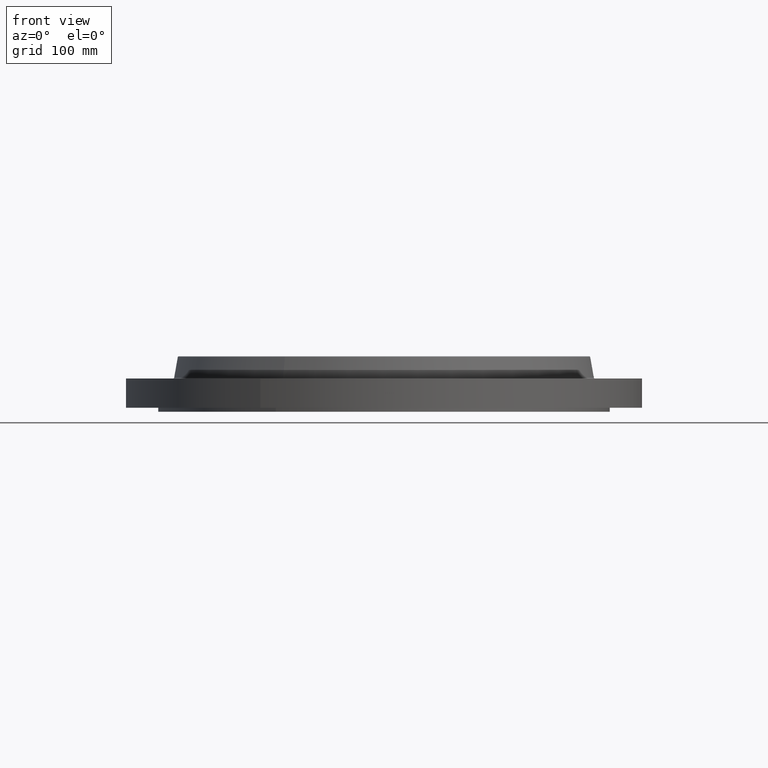
[diagram: clean part render]
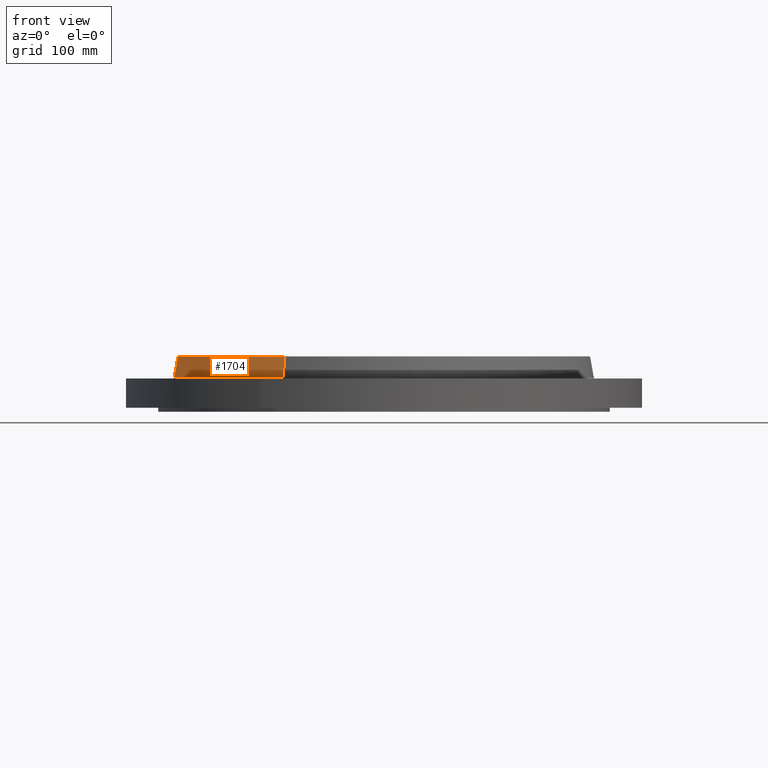
[diagram: same view with one face highlighted and labeled with its STEP entity id]
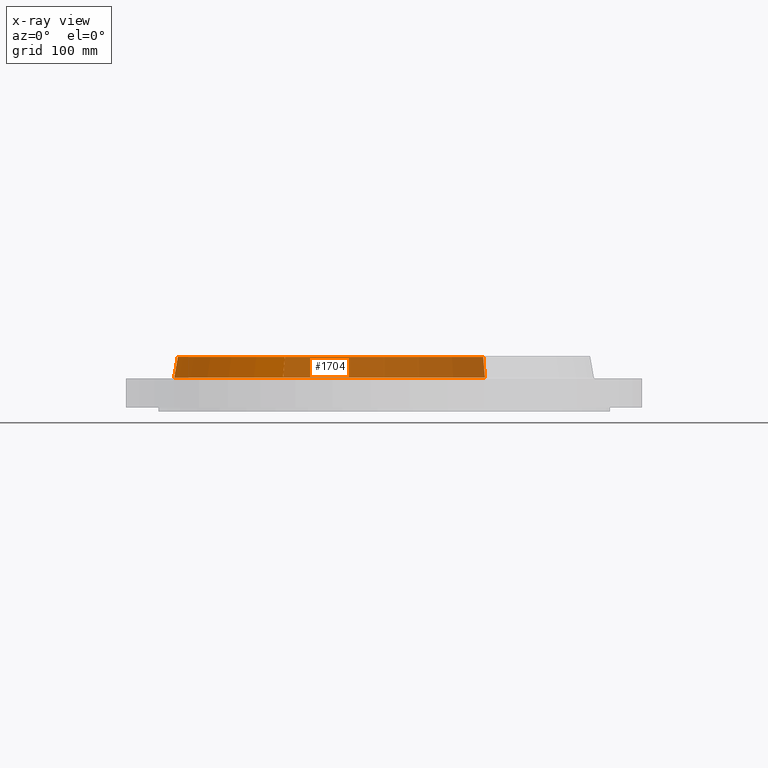
[diagram: x-ray of the same camera — body ghosted, the highlighted face saturated]
A machine part, front view. The second image highlights one B-rep face of the part: STEP entity #1704.
The next image is the same camera in x-ray: the body ghosted, the highlighted face saturated — about 65% of this face is hidden behind the body in this view.
In plain terms, the highlighted conical surface has half-angle 10 deg.
Its self-contained STEP definition (entity closure, byte-faithful):
#1609=AXIS2_PLACEMENT_3D('Circle Axis2P3D',#1607,#1608,$) ;
#1665=AXIS2_PLACEMENT_3D('Cone Axis2P3D',#1662,#1663,#1664) ;
#1695=AXIS2_PLACEMENT_3D('Circle Axis2P3D',#1693,#1694,$) ;
#1580=CARTESIAN_POINT('Vertex',(6.25710616251,11.4535560039,1.85958110935)) ;
#1587=CARTESIAN_POINT('Vertex',(-6.25710616251,-11.4535560039,1.85958110935)) ;
#1607=CARTESIAN_POINT('Axis2P3D Location',(0.,0.,1.85958110935)) ;
#1662=CARTESIAN_POINT('Axis2P3D Location',(0.,0.,3.14041889067)) ;
#1667=CARTESIAN_POINT('Line Origine',(6.20296793039,11.3544566347,2.50000000001)) ;
#1671=CARTESIAN_POINT('Vertex',(6.14882969826,11.2553572656,3.14041889067)) ;
#1678=CARTESIAN_POINT('Vertex',(-6.14882969826,-11.2553572656,3.14041889067)) ;
#1681=CARTESIAN_POINT('Line Origine',(-6.20296793039,-11.3544566347,2.50000000001)) ;
#1693=CARTESIAN_POINT('Axis2P3D Location',(0.,0.,3.14041889067)) ;
#1608=DIRECTION('Axis2P3D Direction',(0.,0.,-0.0393700787402)) ;
#1663=DIRECTION('Axis2P3D Direction',(0.,0.,-0.0393700787402)) ;
#1664=DIRECTION('Axis2P3D XDirection',(-0.0188750212049,-0.0345504945626,0.)) ;
#1668=DIRECTION('Vector Direction',(0.00327761303565,0.00599963041829,-0.03877195878)) ;
#1682=DIRECTION('Vector Direction',(-0.00327761303565,-0.00599963041829,-0.03877195878)) ;
#1694=DIRECTION('Axis2P3D Direction',(0.,0.,-0.0393700787402)) ;
#1669=VECTOR('Line Direction',#1668,0.0393700787402) ;
#1683=VECTOR('Line Direction',#1682,0.0393700787402) ;
#1699=ORIENTED_EDGE('',*,*,#1611,.F.) ;
#1700=ORIENTED_EDGE('',*,*,#1685,.T.) ;
#1701=ORIENTED_EDGE('',*,*,#1697,.T.) ;
#1702=ORIENTED_EDGE('',*,*,#1673,.F.) ;
#1704=ADVANCED_FACE('PartBody',(#1703),#1666,.T.) ;
#1610=CIRCLE('generated circle',#1609,13.0512575127) ;
#1696=CIRCLE('generated circle',#1695,12.825411254) ;
#1666=CONICAL_SURFACE('Cone',#1665,12.825411254,0.174532925199) ;
#1611=EDGE_CURVE('',#1588,#1581,#1610,.T.) ;
#1673=EDGE_CURVE('',#1581,#1672,#1670,.F.) ;
#1685=EDGE_CURVE('',#1588,#1679,#1684,.F.) ;
#1697=EDGE_CURVE('',#1679,#1672,#1696,.T.) ;
#1698=EDGE_LOOP('',(#1699,#1700,#1701,#1702)) ;
#1703=FACE_OUTER_BOUND('',#1698,.T.) ;
#1670=LINE('Line',#1667,#1669) ;
#1684=LINE('Line',#1681,#1683) ;
#1581=VERTEX_POINT('',#1580) ;
#1588=VERTEX_POINT('',#1587) ;
#1672=VERTEX_POINT('',#1671) ;
#1679=VERTEX_POINT('',#1678) ;